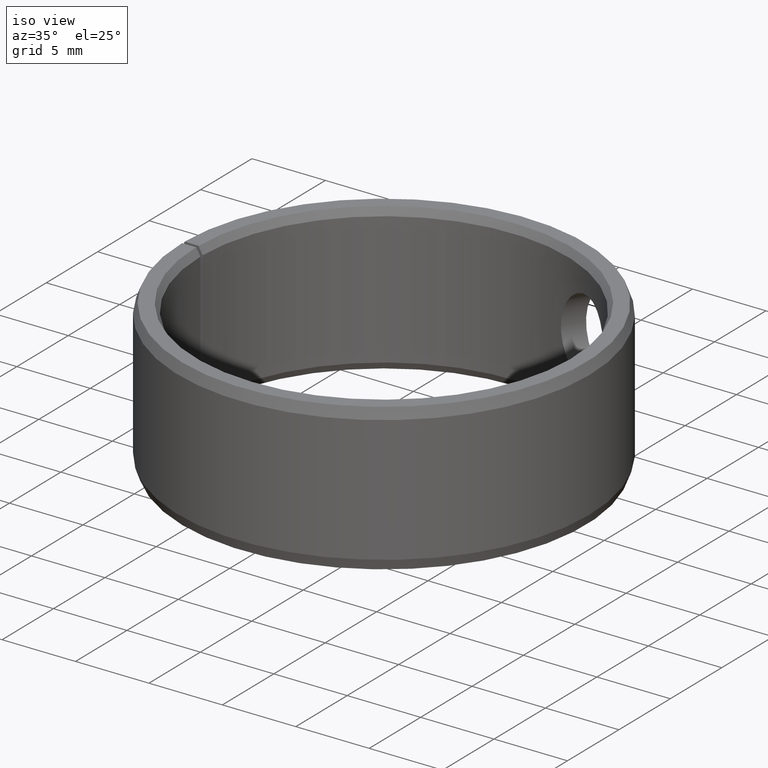
[diagram: clean part render]
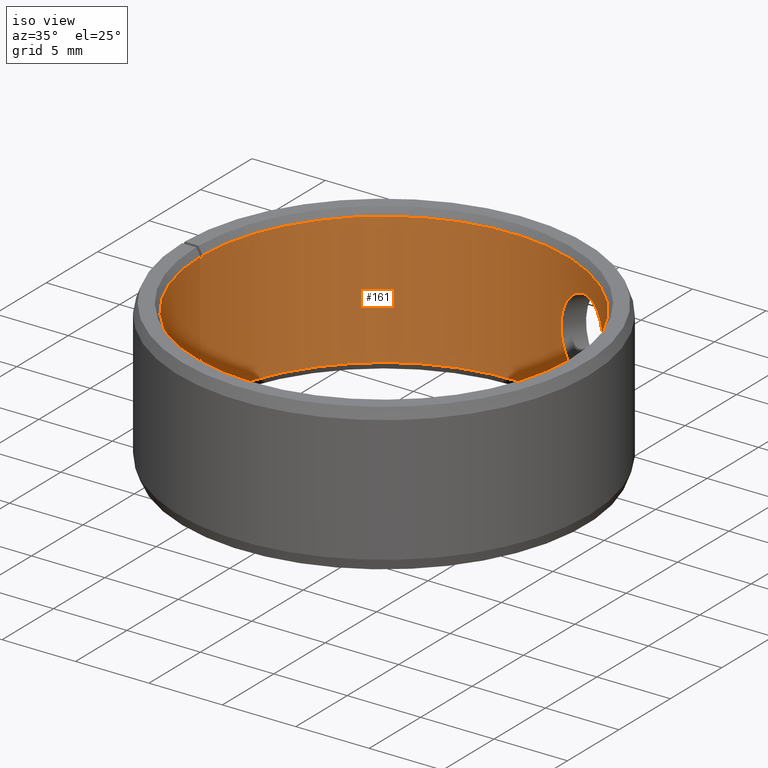
[diagram: same view with one face highlighted and labeled with its STEP entity id]
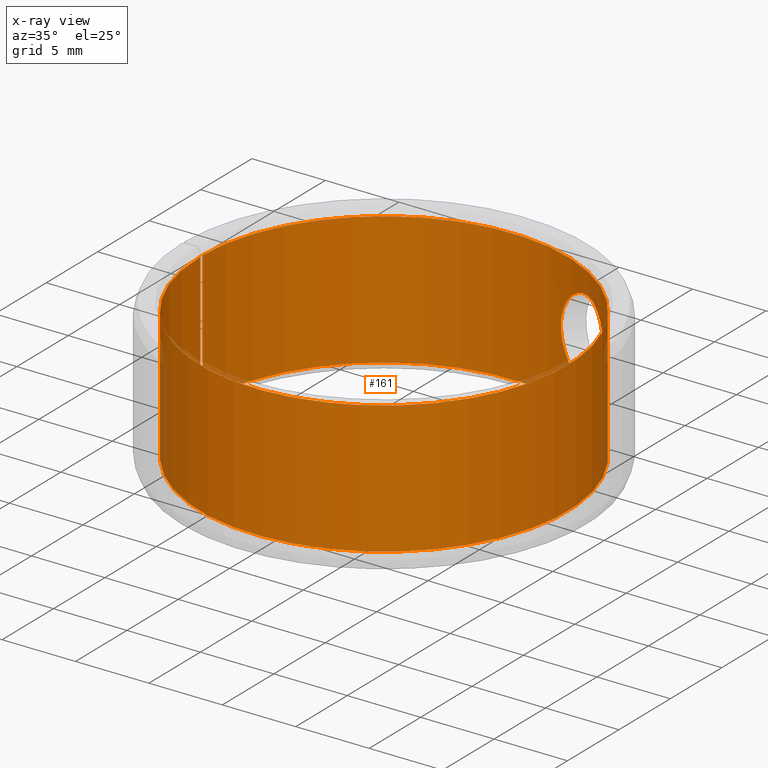
[diagram: x-ray of the same camera — body ghosted, the highlighted face saturated]
A machine part, iso view. The second image highlights one B-rep face of the part: STEP entity #161.
The next image is the same camera in x-ray: the body ghosted, the highlighted face saturated — about 2% of this face is hidden behind the body in this view.
In plain terms, the highlighted cylindrical surface (partial cylindrical patch) has radius 12.5 mm, axis along (-0, 0, -1).
Its self-contained STEP definition (entity closure, byte-faithful):
#161=ADVANCED_FACE('',(#182,#183),#184,.F.);
#182=FACE_OUTER_BOUND('',#208,.T.);
#183=FACE_BOUND('',#209,.T.);
#184=CYLINDRICAL_SURFACE('',#210,0.0125);
#208=EDGE_LOOP('',(#281,#282,#283,#284));
#209=EDGE_LOOP('',(#285));
#210=AXIS2_PLACEMENT_3D('',#286,#287,#288);
#281=ORIENTED_EDGE('',*,*,#304,.T.);
#282=ORIENTED_EDGE('',*,*,#322,.F.);
#283=ORIENTED_EDGE('',*,*,#319,.F.);
#284=ORIENTED_EDGE('',*,*,#325,.T.);
#285=ORIENTED_EDGE('',*,*,#326,.T.);
#286=CARTESIAN_POINT('',(-6.93889390390723E-018,-6.93889390390723E-018,0.0));
#287=DIRECTION('',(6.12323399573677E-017,0.0,-1.0));
#288=DIRECTION('',(-1.0,0.0,-6.12323399573677E-017));
#304=EDGE_CURVE('',#333,#331,#334,.T.);
#319=EDGE_CURVE('',#359,#360,#361,.T.);
#322=EDGE_CURVE('',#360,#331,#364,.T.);
#325=EDGE_CURVE('',#359,#333,#367,.T.);
#326=EDGE_CURVE('',#368,#368,#369,.T.);
#331=VERTEX_POINT('',#375);
#333=VERTEX_POINT('',#378);
#334=CIRCLE('',#379,0.0125);
#359=VERTEX_POINT('',#413);
#360=VERTEX_POINT('',#414);
#361=CIRCLE('',#415,0.0125);
#364=LINE('',#420,#421);
#367=LINE('',#426,#427);
#368=VERTEX_POINT('',#428);
#369=B_SPLINE_CURVE_WITH_KNOTS('',3,(#429,#430,#431,#432,#433,#434,#435,#436,#437,#438,#439,#440,#441,#442,#443,#444,#445,#446,#447,#448,#449,#450,#451,#452,#453,#454,#455,#456,#457,#458,#459,#460,#461,#462,#463,#464,#465,#466,#467,#468,#469,#470,#471,#472,#473,#474,#475,#476,#477,#478,#479,#480,#481,#482,#483,#484,#485,#486,#487,#488,#489,#490,#491,#492),.UNSPECIFIED.,.T.,.F.,(2,2,2,2,2,2,2,2,2,2,2,2,2,2,2,2,2,2,2,2,2,2,2,2,2,2,2,2,2,2,2,2,2,2),(-0.000588281034898589,0.0,0.000588281034898595,0.00117656206979719,0.00176484310469578,0.00235312413959438,0.00294140517449297,0.00352968620939156,0.00411796724429015,0.00470624827918874,0.00529452931408733,0.00588281034898592,0.00647109138388451,0.0070593724187831,0.00764765345368169,0.00823593448858028,0.00882421552347888,0.00941249655837747,0.0105890586281746,0.0111773396630732,0.0117656206979718,0.0123539017328704,0.012942182767769,0.0135304638026676,0.0141187448375662,0.0147070258724648,0.0152953069073634,0.015883587942262,0.0164718689771606,0.0170601500120591,0.0176484310469577,0.0182367120818563,0.0188249931167549,0.0194132741516535),.UNSPECIFIED.);
#375=CARTESIAN_POINT('',(-6.93889390390723E-018,0.0125,0.0005));
#378=CARTESIAN_POINT('',(0.000218155080466037,0.0124980961894549,0.0005));
#379=AXIS2_PLACEMENT_3D('',#558,#559,#560);
#413=CARTESIAN_POINT('',(0.000218155080466037,0.0124980961894549,0.0095));
#414=CARTESIAN_POINT('',(-6.93889390390723E-018,0.0125,0.0095));
#415=AXIS2_PLACEMENT_3D('',#585,#586,#587);
#420=CARTESIAN_POINT('',(-6.93889390390723E-018,0.0125,0.0095));
#421=VECTOR('',#590,1.0);
#426=CARTESIAN_POINT('',(0.000218155080466037,0.0124980961894549,0.0095));
#427=VECTOR('',#593,1.0);
#428=CARTESIAN_POINT('',(0.00885632047490393,-0.00882131439445378,0.005));
#429=CARTESIAN_POINT('',(0.00885632047490393,-0.00882131439445378,0.00519897629236843));
#430=CARTESIAN_POINT('',(0.00885632047490393,-0.00882131439445378,0.00480102370763157));
#431=CARTESIAN_POINT('',(0.00887060801508699,-0.00880703515908166,0.00460552353993709));
#432=CARTESIAN_POINT('',(0.00892599499023425,-0.00875089528476596,0.00422114284022996));
#433=CARTESIAN_POINT('',(0.00896779204067812,-0.00870831130558218,0.00403022657795963));
#434=CARTESIAN_POINT('',(0.00907484727826891,-0.00859669278012629,0.00366731017956877));
#435=CARTESIAN_POINT('',(0.0091396786892607,-0.00852810696772537,0.00349529929286671));
#436=CARTESIAN_POINT('',(0.00928976897487818,-0.00836436054873789,0.00316976204525107));
#437=CARTESIAN_POINT('',(0.0093754526946495,-0.00826864229251243,0.00301622160314748));
#438=CARTESIAN_POINT('',(0.00955810451651012,-0.00805681057507277,0.0027406385914374));
#439=CARTESIAN_POINT('',(0.00965584091228449,-0.00793990352391979,0.00261670706961737));
#440=CARTESIAN_POINT('',(0.00986245049769695,-0.00768175773329113,0.00239734614026971));
#441=CARTESIAN_POINT('',(0.0099689528243197,-0.00754339318071887,0.00230461730849215));
#442=CARTESIAN_POINT('',(0.0101833126175242,-0.00725140987851323,0.00215473453464443));
#443=CARTESIAN_POINT('',(0.0102926883023462,-0.00709564698354434,0.00209671846244429));
#444=CARTESIAN_POINT('',(0.0105079342040151,-0.00677281015298865,0.0020193536365746));
#445=CARTESIAN_POINT('',(0.0106124294144885,-0.00660794509533711,0.0020001216828471));
#446=CARTESIAN_POINT('',(0.0108148478169199,-0.00627117717476989,0.00199987945728094));
#447=CARTESIAN_POINT('',(0.0109135801933662,-0.00609762006583402,0.00201953326133243));
#448=CARTESIAN_POINT('',(0.0110965180618742,-0.00575799357474427,0.00209640292515818));
#449=CARTESIAN_POINT('',(0.0111816475900836,-0.00559054477060253,0.00215326972729905));
#450=CARTESIAN_POINT('',(0.0113403842774647,-0.00526109476253425,0.00230425405408531));
#451=CARTESIAN_POINT('',(0.0114129447817266,-0.00510112201082134,0.00239783921307462));
#452=CARTESIAN_POINT('',(0.0115425146926919,-0.00480074045632727,0.00261465432702435));
#453=CARTESIAN_POINT('',(0.0116005903623565,-0.00465791971312208,0.00273950496270461));
#454=CARTESIAN_POINT('',(0.0117027872337349,-0.00439484741157424,0.003017604453523));
#455=CARTESIAN_POINT('',(0.0117461510535234,-0.00427670620915678,0.0031682598435595));
#456=CARTESIAN_POINT('',(0.0118201284333513,-0.00406778126141385,0.0034924770510523));
#457=CARTESIAN_POINT('',(0.011850935043456,-0.00397634096719326,0.00366814542827027));
#458=CARTESIAN_POINT('',(0.0118991014398589,-0.00382979553181898,0.00403028357756143));
#459=CARTESIAN_POINT('',(0.0119167805745733,-0.00377384767185728,0.0042172788549418));
#460=CARTESIAN_POINT('',(0.0119405815194949,-0.00369785052283178,0.00460337951537279));
#461=CARTESIAN_POINT('',(0.0119465236521878,-0.00367839267004559,0.00480254112040654));
#462=CARTESIAN_POINT('',(0.0119465992239134,-0.00367814722550707,0.00539110545900318));
#463=CARTESIAN_POINT('',(0.0119232522966096,-0.00375628047129552,0.00578726127403096));
#464=CARTESIAN_POINT('',(0.0118513342251184,-0.00397514454598179,0.00632928807772022));
#465=CARTESIAN_POINT('',(0.0118206911688308,-0.00406615574208262,0.00650472891133975));
#466=CARTESIAN_POINT('',(0.011746490928873,-0.00427578216068718,0.00683057440331463));
#467=CARTESIAN_POINT('',(0.0117031367488794,-0.00439388828283014,0.00698114698362763));
#468=CARTESIAN_POINT('',(0.011601620184016,-0.00465532739029126,0.00725798611824578));
#469=CARTESIAN_POINT('',(0.0115430961704468,-0.00479934123048276,0.00738419877742766));
#470=CARTESIAN_POINT('',(0.0114135849027942,-0.00509968872711895,0.00760126189471969));
#471=CARTESIAN_POINT('',(0.0113421123644622,-0.00525737851129371,0.00769376085739224));
#472=CARTESIAN_POINT('',(0.0111832198078767,-0.00558740873999863,0.00784556922190991));
#473=CARTESIAN_POINT('',(0.0110973288083126,-0.00575640766381113,0.00790307375312932));
#474=CARTESIAN_POINT('',(0.0109151161514992,-0.00609484825660741,0.00798000164906169));
#475=CARTESIAN_POINT('',(0.0108173736849522,-0.00626686561599889,0.00799988918665583));
#476=CARTESIAN_POINT('',(0.0106135314215664,-0.00660621895279798,0.00800010988094876));
#477=CARTESIAN_POINT('',(0.0105089759240249,-0.00677115951355081,0.00798082021304083));
#478=CARTESIAN_POINT('',(0.0102951372783323,-0.00709206067021262,0.00790435908509924));
#479=CARTESIAN_POINT('',(0.0101848791362311,-0.00724922664872761,0.00784622494992986));
#480=CARTESIAN_POINT('',(0.00996975439848409,-0.007542350247646,0.00769607751680504));
#481=CARTESIAN_POINT('',(0.00986397798926059,-0.00767978968537375,0.0076040447323065));
#482=CARTESIAN_POINT('',(0.00965780549801637,-0.00793750743915715,0.00738560577702691));
#483=CARTESIAN_POINT('',(0.0095587844422973,-0.00805600328527542,0.00726026340877847));
#484=CARTESIAN_POINT('',(0.00937619612526624,-0.0082677986893257,0.00698502297870451));
#485=CARTESIAN_POINT('',(0.00929124334120056,-0.00836273319142894,0.00683316380406959));
#486=CARTESIAN_POINT('',(0.00914011524230403,-0.00852764930176145,0.00650591611336649));
#487=CARTESIAN_POINT('',(0.00907529089706563,-0.00859622219280752,0.00633382025247267));
#488=CARTESIAN_POINT('',(0.00896859356352326,-0.00870748358291923,0.00597285967366355));
#489=CARTESIAN_POINT('',(0.00892652226065833,-0.00875035912219712,0.00578188926216425));
#490=CARTESIAN_POINT('',(0.00887061251358724,-0.00880703230783426,0.00539512884130825));
#491=CARTESIAN_POINT('',(0.00885632047490393,-0.00882131439445378,0.00519897629236843));
#492=CARTESIAN_POINT('',(0.00885632047490393,-0.00882131439445378,0.00480102370763157));
#558=CARTESIAN_POINT('',(-6.93889390390723E-018,-6.93889390390723E-018,0.0005));
#559=DIRECTION('',(6.12323399573677E-017,0.0,-1.0));
#560=DIRECTION('',(-1.0,0.0,-6.12323399573677E-017));
#585=CARTESIAN_POINT('',(-6.93889390390723E-018,-6.93889390390723E-018,0.0095));
#586=DIRECTION('',(6.12323399573677E-017,0.0,-1.0));
#587=DIRECTION('',(-1.0,0.0,-6.12323399573677E-017));
#590=DIRECTION('',(0.0,3.85494105772624E-016,-1.0));
#593=DIRECTION('',(6.73712579508202E-018,3.86504044837174E-016,-1.0));